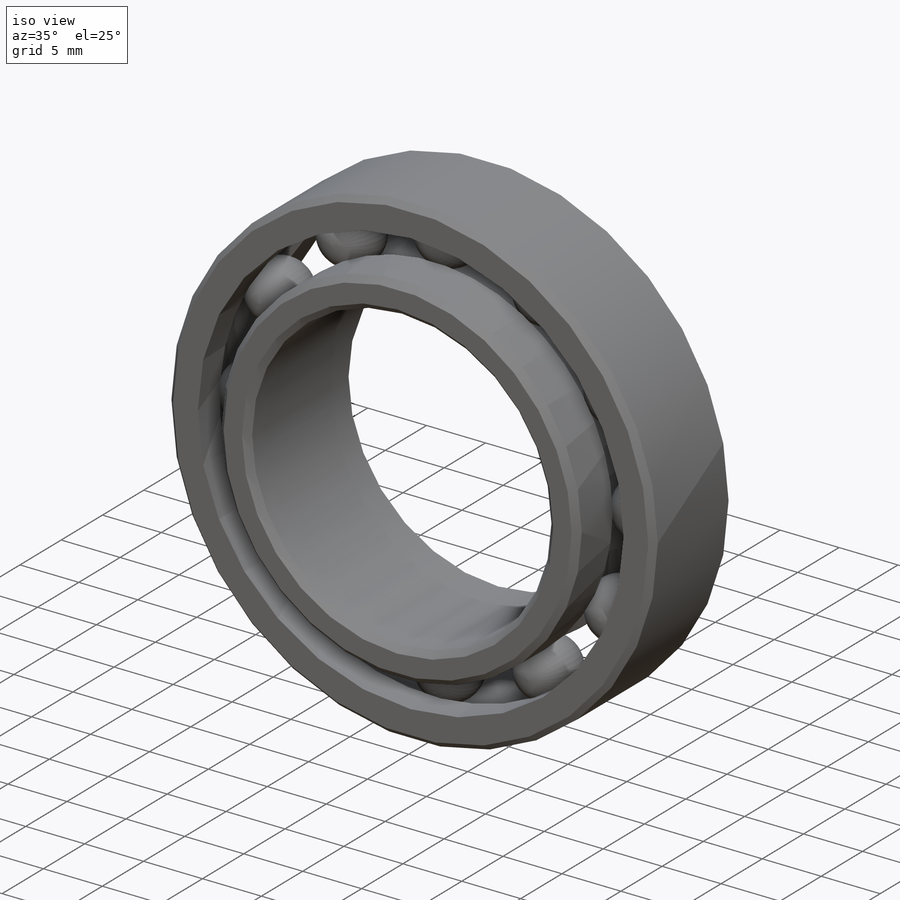
[diagram: iso view]
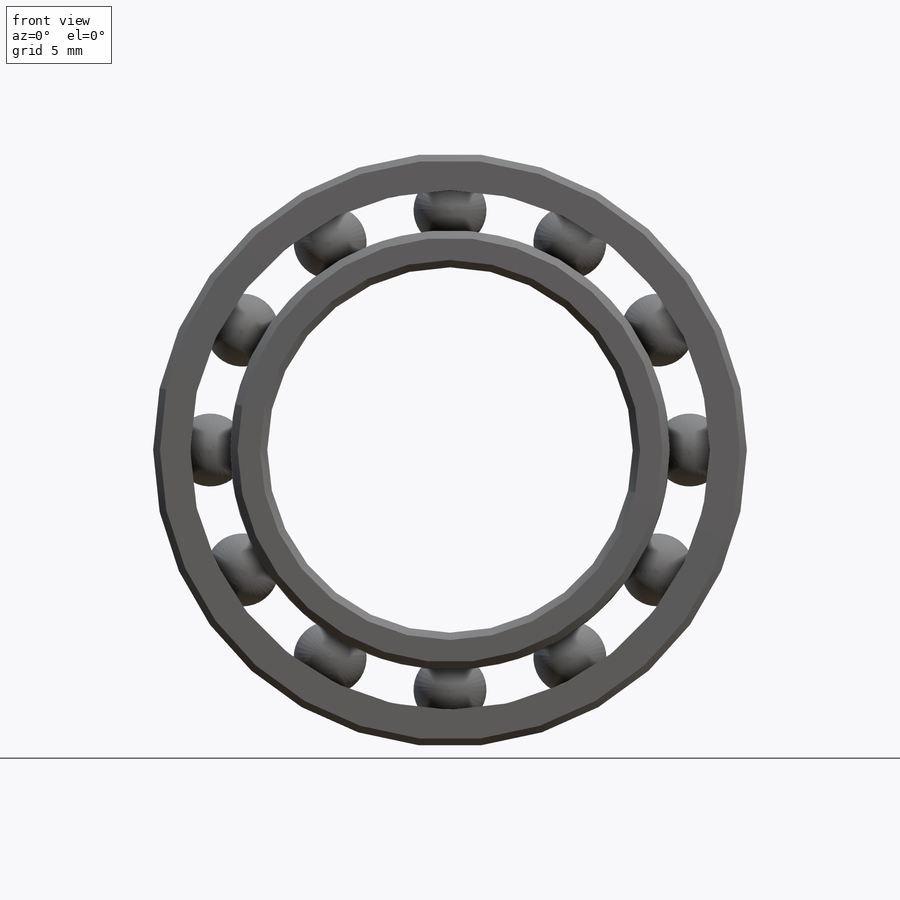
[diagram: front view]
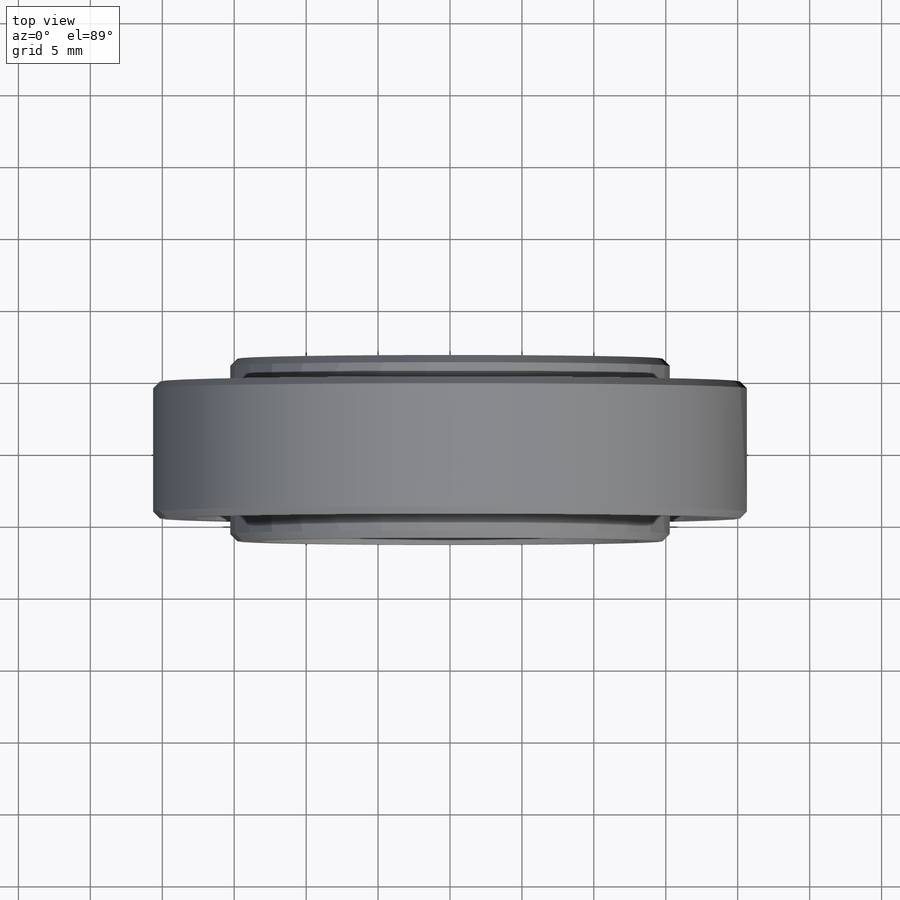
[diagram: top view]
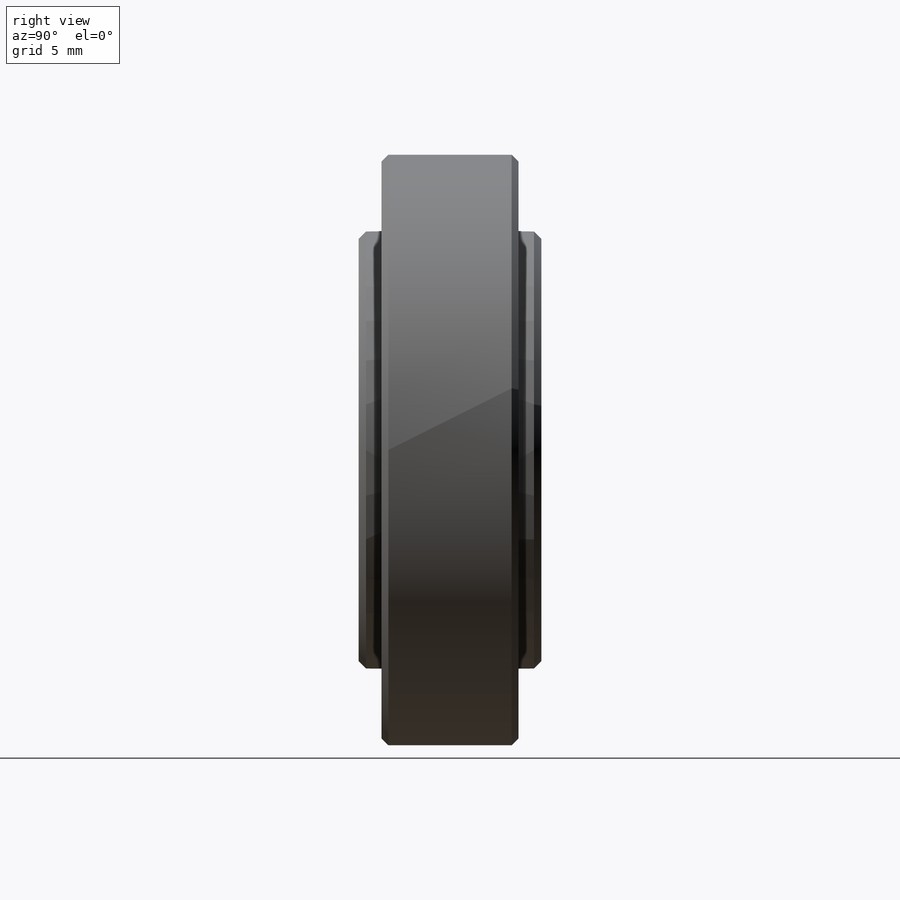
[diagram: right view]
SOLIDWORKS PART (.sldprt)
format: sldprt  version: not decoded by parser v0  size: 459,776 bytes
history: native  units: mm
features: sketch x3, revolve x3, material x1, pattern_circular x1, chamfer x1 (+13 scaffold rows collapsed)
feature tree (22):
  scaffold x13  (default folders/planes/origin — collapsed)
  material  "Material <not specified>"
  sketch  "Sketch1"  dims[c1.D3=~8.087863mm c1.Width=9.525mm c1.OD=41.275mm c1.D1=~8.793076mm c2.D1=45.0deg c2.D2=~0.47625mm c2.Shaft Dia=25.4mm c2.D3=~4.233333mm c2.D4=~1.395604mm]
  revolve  "Revolve1"  Angle=360deg
  sketch  "Sketch3"  dims[D1=12.7mm]
  revolve  "Revolve3"  Angle=360deg
  sketch  "Sketch4"
  revolve  "Revolve4"  Angle=360deg
  pattern_circular  "CirPattern1"  Count=12 Angle=30deg Balls=12
  chamfer  "Chamfer1"  Distance=0.508mm Angle=45deg
decode coverage: 7 of 8 modeling features carry decoded parameters
note: ~ marks probable driven/reference dimensions
note: suppression state not decoded; provenance and decode notes live in map.json
